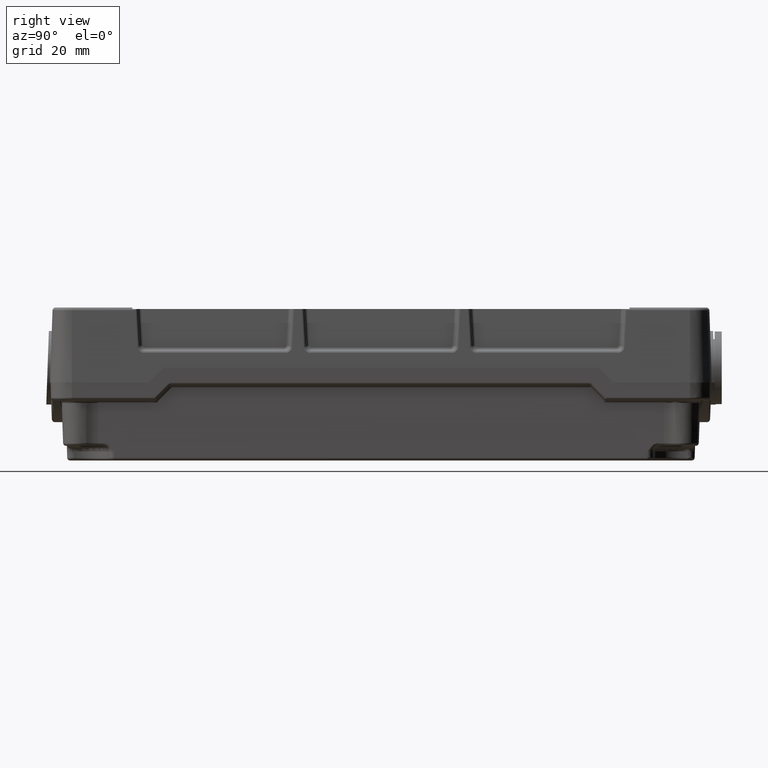
[diagram: clean part render]
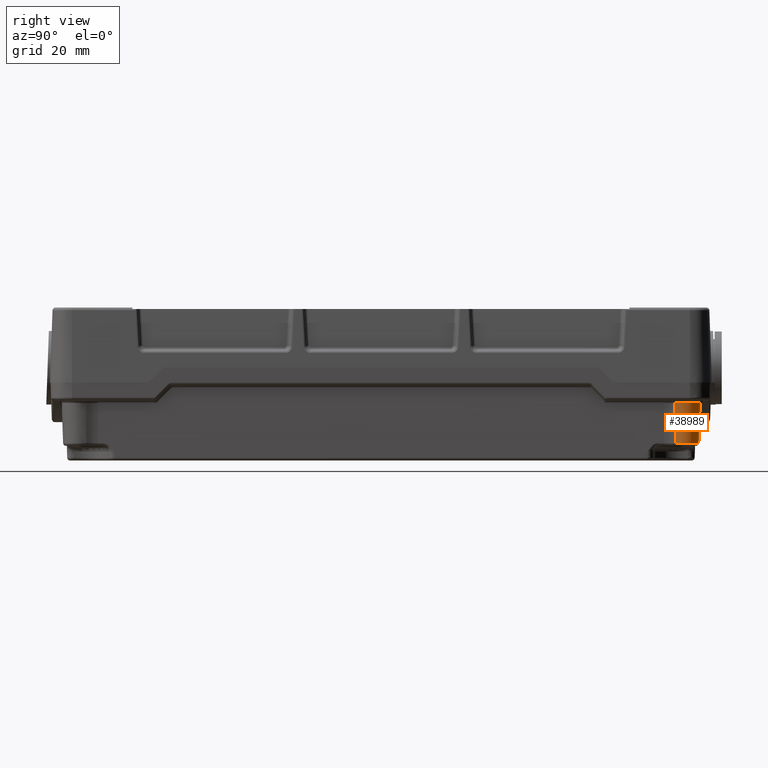
[diagram: same view with one face highlighted and labeled with its STEP entity id]
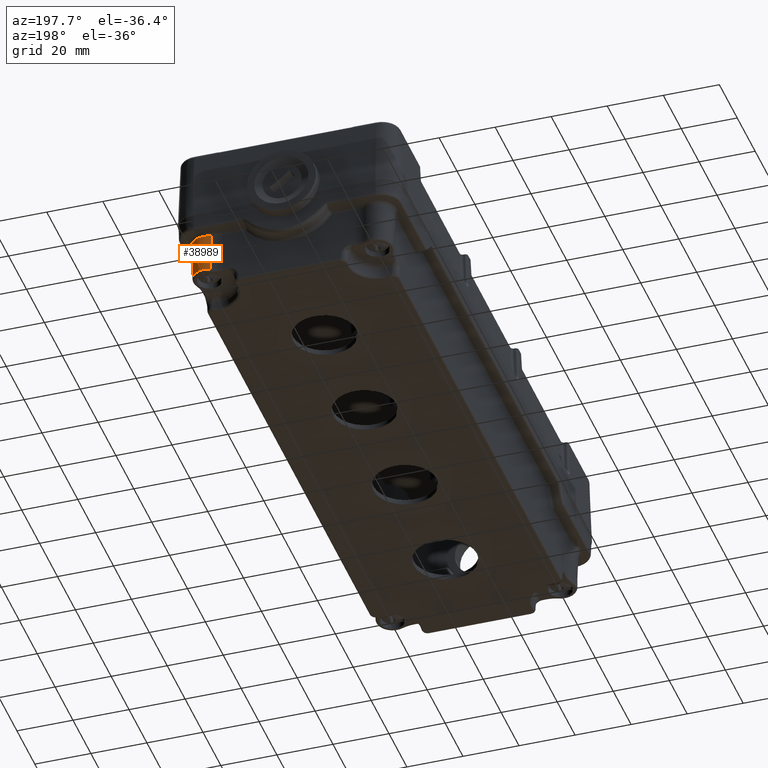
[diagram: same view with one face highlighted and labeled with its STEP entity id]
A machine part, right view. The second image highlights one B-rep face of the part: STEP entity #38989.
A second angle (auxiliary view) of the same face is appended — the face is thin or edge-on in the first view.
In plain terms, the highlighted conical surface has half-angle 2 deg.
Its self-contained STEP definition (entity closure, byte-faithful):
#32730=CARTESIAN_POINT('',(-7.010352267506208,0.018538524300158,25.534899496702504));
#32731=VERTEX_POINT('',#32730);
#32764=CARTESIAN_POINT('',(0.499211308442530,7.528102100245135,25.534899496702508));
#32765=VERTEX_POINT('',#32764);
#32773=CARTESIAN_POINT('',(-1.709813190870606,2.227563023610629,25.534899496702508));
#32774=DIRECTION('',(0.0,0.0,1.000000000000000));
#32775=DIRECTION('',(-0.707106781186370,0.707106781186725,0.0));
#32776=AXIS2_PLACEMENT_3D('',#32773,#32774,#32775);
#32777=CIRCLE('',#32776,5.742430125085977);
#32778=EDGE_CURVE('',#32765,#32731,#32777,.T.);
#37846=CARTESIAN_POINT('',(-7.447755049370031,-0.163751134776753,11.965100503297478));
#37847=VERTEX_POINT('',#37846);
#37928=CARTESIAN_POINT('',(0.681500967519660,7.965504882108867,11.965100503297476));
#37929=VERTEX_POINT('',#37928);
#37947=CARTESIAN_POINT('',(-1.709813190870606,2.227563023610629,11.965100503297476));
#37948=DIRECTION('',(0.0,0.0,-1.000000000000000));
#37949=DIRECTION('',(-0.707106781186370,0.707106781186725,0.0));
#37950=AXIS2_PLACEMENT_3D('',#37947,#37948,#37949);
#37951=CIRCLE('',#37950,6.216297947784024);
#37952=EDGE_CURVE('',#37847,#37929,#37951,.T.);
#38964=CARTESIAN_POINT('',(0.681500967519660,7.965504882108867,11.965100503297476));
#38965=DIRECTION('',(-0.013425299315831,-0.032213913273122,0.999390827019096));
#38966=VECTOR('',#38965,13.578070387017618);
#38967=LINE('',#38964,#38966);
#38968=EDGE_CURVE('',#37929,#32765,#38967,.T.);
#38973=CARTESIAN_POINT('',(-1.709813190870606,2.227563023610628,10.999999999999979));
#38974=DIRECTION('',(0.0,-1.110223E-016,-1.0));
#38975=DIRECTION('',(-0.923048075670968,-0.384684611077858,4.414286E-017));
#38976=AXIS2_PLACEMENT_3D('',#38973,#38974,#38975);
#38977=CONICAL_SURFACE('',#38976,6.249999999996046,2.0);
#38978=ORIENTED_EDGE('',*,*,#32778,.F.);
#38979=ORIENTED_EDGE('',*,*,#38968,.F.);
#38980=ORIENTED_EDGE('',*,*,#37952,.F.);
#38981=CARTESIAN_POINT('',(-7.447755049370031,-0.163751134776753,11.965100503297478));
#38982=DIRECTION('',(0.032213913273129,0.013425299315815,0.999390827019096));
#38983=VECTOR('',#38982,13.578070387017613);
#38984=LINE('',#38981,#38983);
#38985=EDGE_CURVE('',#37847,#32731,#38984,.T.);
#38986=ORIENTED_EDGE('',*,*,#38985,.T.);
#38987=EDGE_LOOP('',(#38978,#38979,#38980,#38986));
#38988=FACE_OUTER_BOUND('',#38987,.T.);
#38989=ADVANCED_FACE('',(#38988),#38977,.T.);